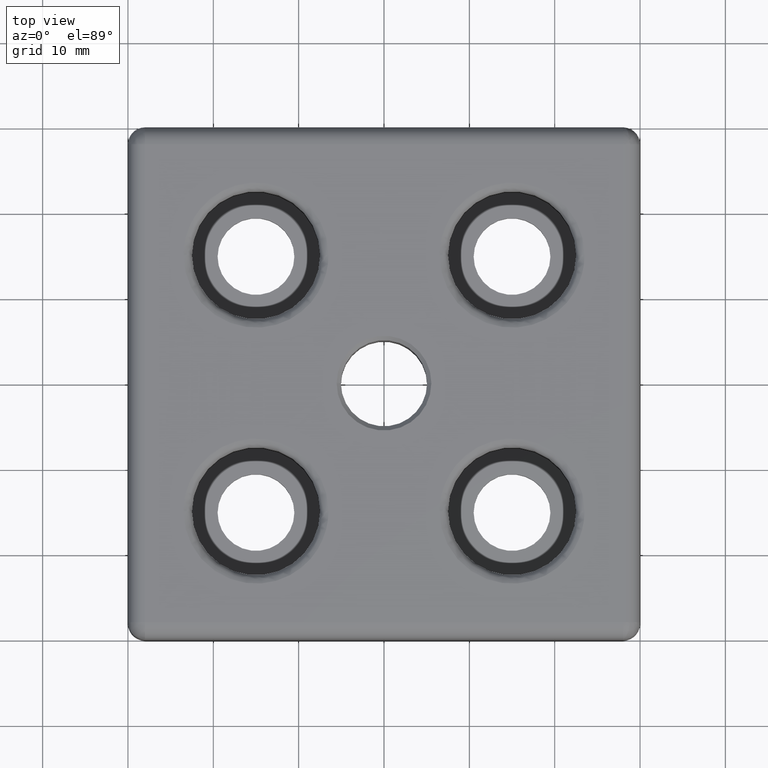
[diagram: clean part render]
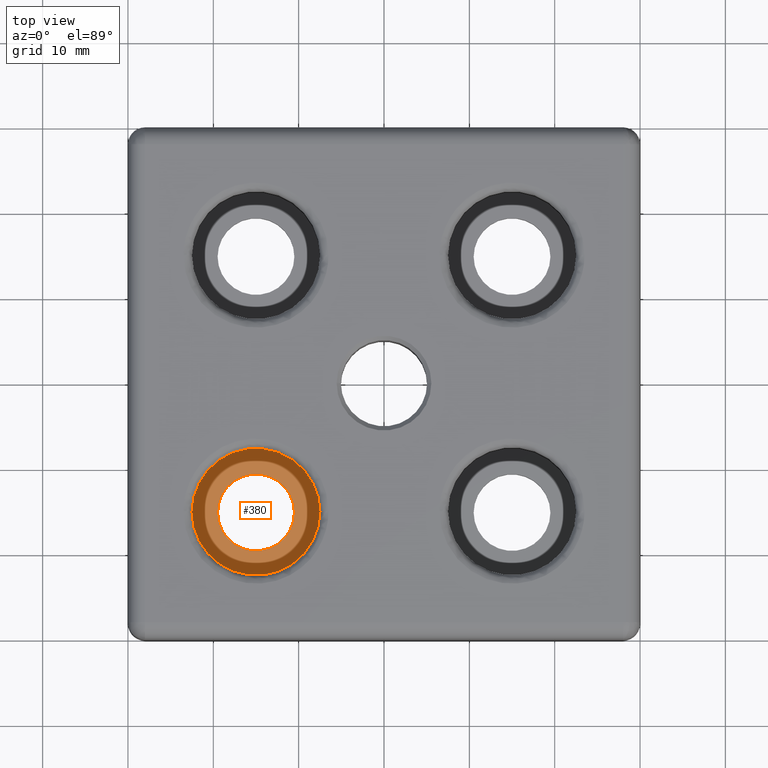
[diagram: same view with one face highlighted and labeled with its STEP entity id]
A machine part, top view. The second image highlights one B-rep face of the part: STEP entity #380.
In plain terms, the highlighted planar face has unit normal (0, 0, 1).
Its self-contained STEP definition (entity closure, byte-faithful):
#380=ADVANCED_FACE('NONE',(#879,#880),#881,.T.);
#879=FACE_OUTER_BOUND('',#2122,.T.);
#880=FACE_BOUND('',#2123,.T.);
#881=PLANE('',#2124);
#2122=EDGE_LOOP('',(#3924,#3925));
#2123=EDGE_LOOP('',(#3926,#3927));
#2124=AXIS2_PLACEMENT_3D('',#3928,#3929,#3930);
#3924=ORIENTED_EDGE('',*,*,#5084,.T.);
#3925=ORIENTED_EDGE('',*,*,#4953,.T.);
#3926=ORIENTED_EDGE('',*,*,#5172,.T.);
#3927=ORIENTED_EDGE('',*,*,#4969,.T.);
#3928=CARTESIAN_POINT('',(-15.0,-15.0,3.0));
#3929=DIRECTION('',(0.0,0.0,1.0));
#3930=DIRECTION('',(1.0,-0.0,0.0));
#4953=EDGE_CURVE('NONE',#5752,#5753,#5754,.T.);
#4969=EDGE_CURVE('NONE',#5776,#5777,#5778,.T.);
#5084=EDGE_CURVE('NONE',#5753,#5752,#5950,.T.);
#5172=EDGE_CURVE('NONE',#5777,#5776,#6072,.T.);
#5752=VERTEX_POINT('NONE',#6850);
#5753=VERTEX_POINT('NONE',#6851);
#5754=CIRCLE('',#6852,7.5);
#5776=VERTEX_POINT('NONE',#6882);
#5777=VERTEX_POINT('NONE',#6883);
#5778=CIRCLE('',#6884,4.5);
#5950=CIRCLE('',#7134,7.5);
#6072=CIRCLE('',#7280,4.5);
#6850=CARTESIAN_POINT('',(-22.5,-15.0,3.0));
#6851=CARTESIAN_POINT('',(-7.5,-15.0,3.0));
#6852=AXIS2_PLACEMENT_3D('',#8609,#8610,#8611);
#6882=CARTESIAN_POINT('',(-10.5,-15.0,3.0));
#6883=CARTESIAN_POINT('',(-19.5,-15.0,3.0));
#6884=AXIS2_PLACEMENT_3D('',#8629,#8630,#8631);
#7134=AXIS2_PLACEMENT_3D('',#8802,#8803,#8804);
#7280=AXIS2_PLACEMENT_3D('',#8979,#8980,#8981);
#8609=CARTESIAN_POINT('',(-15.0,-15.0,3.0));
#8610=DIRECTION('',(0.0,0.0,1.0));
#8611=DIRECTION('',(1.0,0.0,0.0));
#8629=CARTESIAN_POINT('',(-15.0,-15.0,3.0));
#8630=DIRECTION('',(0.0,0.0,-1.0));
#8631=DIRECTION('',(-1.0,0.0,0.0));
#8802=CARTESIAN_POINT('',(-15.0,-15.0,3.0));
#8803=DIRECTION('',(0.0,0.0,1.0));
#8804=DIRECTION('',(1.0,0.0,0.0));
#8979=CARTESIAN_POINT('',(-15.0,-15.0,3.0));
#8980=DIRECTION('',(0.0,0.0,-1.0));
#8981=DIRECTION('',(-1.0,0.0,0.0));